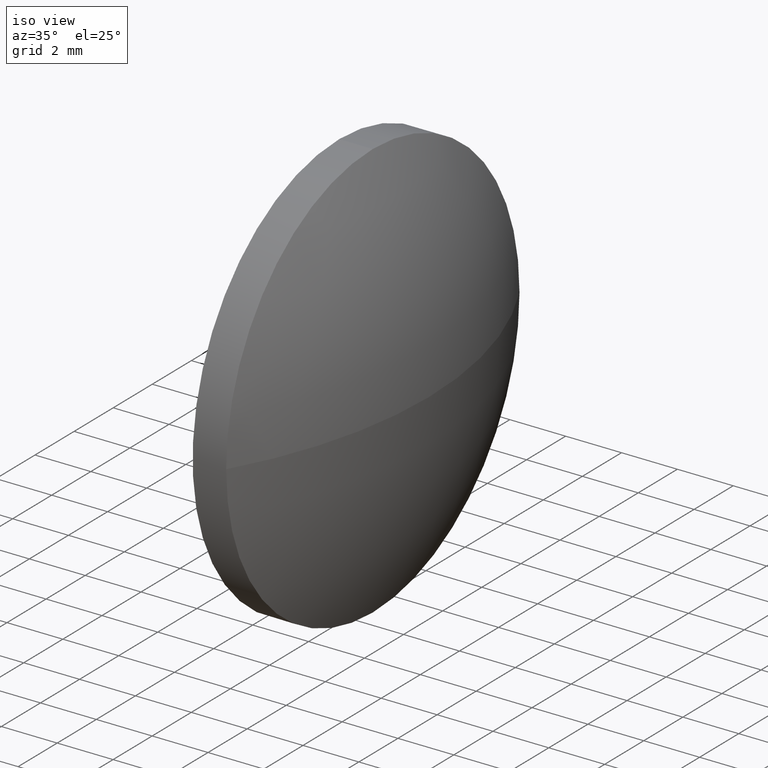
[diagram: clean part render]
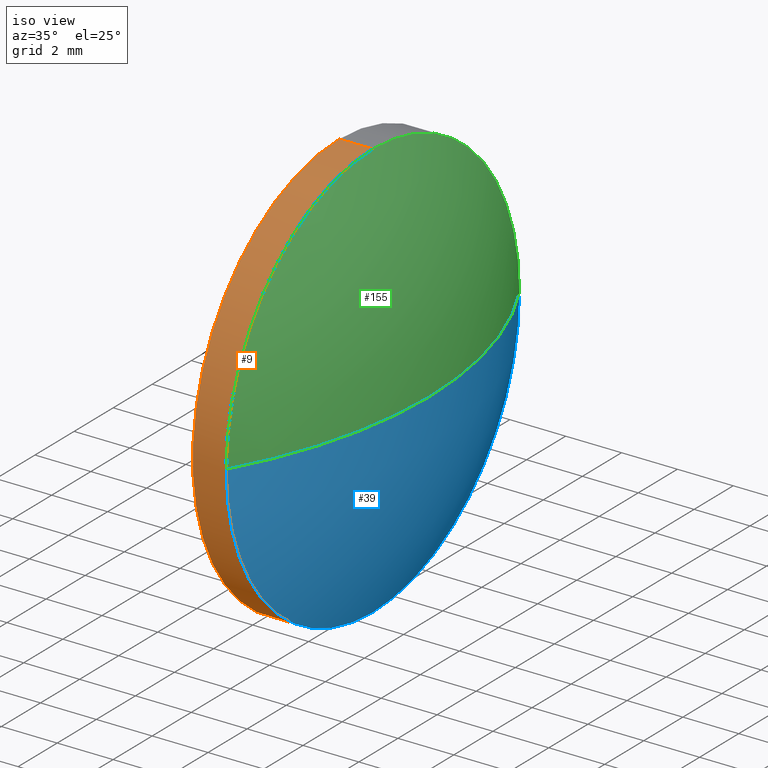
[diagram: same view with three faces highlighted in distinct colors, each labeled with its STEP entity id]
A machine part, iso view with three faces highlighted in distinct colors.
Their STEP definitions:

[orange] entity #9 — the highlighted cylindrical surface (partial cylindrical patch) has radius 7.5 mm, axis along (-1, -0, -0).
#9 = ADVANCED_FACE ( 'NONE', ( #22 ), #119, .T. ) ;
#18 = VERTEX_POINT ( 'NONE', #121 ) ;
#19 = LINE ( 'NONE', #143, #169 ) ;
#20 = AXIS2_PLACEMENT_3D ( 'NONE', #186, #134, #32 ) ;
#21 = VECTOR ( 'NONE', #61, 1000.000000000000000 ) ;
#22 = FACE_OUTER_BOUND ( 'NONE', #86, .T. ) ;
#28 = VERTEX_POINT ( 'NONE', #161 ) ;
#29 = CARTESIAN_POINT ( 'NONE',  ( 465.5821324568758000, 58.16787172714012400, 0.0000000000000000000 ) ) ;
#32 = DIRECTION ( 'NONE',  ( 0.0000000000000000000, 0.0000000000000000000, 1.000000000000000000 ) ) ;
#36 = AXIS2_PLACEMENT_3D ( 'NONE', #113, #111, #65 ) ;
#44 = EDGE_CURVE ( 'NONE', #102, #88, #19, .T. ) ;
#46 = LINE ( 'NONE', #116, #21 ) ;
#50 = ORIENTED_EDGE ( 'NONE', *, *, #53, .T. ) ;
#51 = DIRECTION ( 'NONE',  ( -1.000000000000000000, -0.0000000000000000000, -0.0000000000000000000 ) ) ;
#53 = EDGE_CURVE ( 'NONE', #28, #102, #149, .T. ) ;
#61 = DIRECTION ( 'NONE',  ( -1.000000000000000000, -0.0000000000000000000, -0.0000000000000000000 ) ) ;
#65 = DIRECTION ( 'NONE',  ( 0.0000000000000000000, 0.0000000000000000000, 1.000000000000000000 ) ) ;
#66 = EDGE_CURVE ( 'NONE', #18, #28, #179, .T. ) ;
#69 = DIRECTION ( 'NONE',  ( 0.0000000000000000000, 0.0000000000000000000, 1.000000000000000000 ) ) ;
#80 = EDGE_CURVE ( 'NONE', #166, #88, #150, .T. ) ;
#86 = EDGE_LOOP ( 'NONE', ( #182, #160, #50, #156, #101 ) ) ;
#88 = VERTEX_POINT ( 'NONE', #132 ) ;
#98 = AXIS2_PLACEMENT_3D ( 'NONE', #135, #162, #142 ) ;
#101 = ORIENTED_EDGE ( 'NONE', *, *, #80, .F. ) ;
#102 = VERTEX_POINT ( 'NONE', #157 ) ;
#111 = DIRECTION ( 'NONE',  ( -1.000000000000000000, -0.0000000000000000000, -0.0000000000000000000 ) ) ;
#112 = EDGE_CURVE ( 'NONE', #18, #166, #46, .T. ) ;
#113 = CARTESIAN_POINT ( 'NONE',  ( 466.7821324568757900, 58.16787172714012400, 0.0000000000000000000 ) ) ;
#116 = CARTESIAN_POINT ( 'NONE',  ( 462.7413203261423300, 58.16787172714012400, -7.500000000000007100 ) ) ;
#119 = CYLINDRICAL_SURFACE ( 'NONE', #98, 7.500000000000007100 ) ;
#121 = CARTESIAN_POINT ( 'NONE',  ( 466.7821324568757900, 58.16787172714012400, -7.500000000000007100 ) ) ;
#131 = CARTESIAN_POINT ( 'NONE',  ( 465.5821324568758000, 58.16787172714012400, -7.500000000000007100 ) ) ;
#132 = CARTESIAN_POINT ( 'NONE',  ( 465.5821324568758000, 58.16787172714012400, 7.500000000000007100 ) ) ;
#134 = DIRECTION ( 'NONE',  ( -1.000000000000000000, -0.0000000000000000000, -0.0000000000000000000 ) ) ;
#135 = CARTESIAN_POINT ( 'NONE',  ( 462.7413203261423300, 58.16787172714012400, 0.0000000000000000000 ) ) ;
#140 = AXIS2_PLACEMENT_3D ( 'NONE', #29, #51, #69 ) ;
#142 = DIRECTION ( 'NONE',  ( 0.0000000000000000000, 0.0000000000000000000, 1.000000000000000000 ) ) ;
#143 = CARTESIAN_POINT ( 'NONE',  ( 462.7413203261423300, 58.16787172714012400, 7.500000000000007100 ) ) ;
#149 = CIRCLE ( 'NONE', #36, 7.500000000000007100 ) ;
#150 = CIRCLE ( 'NONE', #140, 7.500000000000007100 ) ;
#156 = ORIENTED_EDGE ( 'NONE', *, *, #44, .T. ) ;
#157 = CARTESIAN_POINT ( 'NONE',  ( 466.7821324568757900, 58.16787172714012400, 7.500000000000007100 ) ) ;
#160 = ORIENTED_EDGE ( 'NONE', *, *, #66, .T. ) ;
#161 = CARTESIAN_POINT ( 'NONE',  ( 466.7821324568757900, 50.66787172714013100, 0.0000000000000000000 ) ) ;
#162 = DIRECTION ( 'NONE',  ( -1.000000000000000000, -0.0000000000000000000, -0.0000000000000000000 ) ) ;
#163 = DIRECTION ( 'NONE',  ( -1.000000000000000000, -0.0000000000000000000, -0.0000000000000000000 ) ) ;
#166 = VERTEX_POINT ( 'NONE', #131 ) ;
#169 = VECTOR ( 'NONE', #163, 1000.000000000000000 ) ;
#179 = CIRCLE ( 'NONE', #20, 7.500000000000007100 ) ;
#182 = ORIENTED_EDGE ( 'NONE', *, *, #112, .F. ) ;
#186 = CARTESIAN_POINT ( 'NONE',  ( 466.7821324568757900, 58.16787172714012400, 0.0000000000000000000 ) ) ;

[blue] entity #39 — the highlighted spherical surface has radius 15.0625 mm.
#4 = ORIENTED_EDGE ( 'NONE', *, *, #164, .F. ) ;
#11 = DIRECTION ( 'NONE',  ( 0.0000000000000000000, 0.0000000000000000000, 1.000000000000000000 ) ) ;
#18 = VERTEX_POINT ( 'NONE', #121 ) ;
#20 = AXIS2_PLACEMENT_3D ( 'NONE', #186, #134, #32 ) ;
#25 = CARTESIAN_POINT ( 'NONE',  ( 453.7196324568757900, 58.16787172714014500, 0.0000000000000000000 ) ) ;
#27 = CARTESIAN_POINT ( 'NONE',  ( 468.7821324568757900, 58.16787172714014500, 0.0000000000000000000 ) ) ;
#28 = VERTEX_POINT ( 'NONE', #161 ) ;
#32 = DIRECTION ( 'NONE',  ( 0.0000000000000000000, 0.0000000000000000000, 1.000000000000000000 ) ) ;
#33 = VERTEX_POINT ( 'NONE', #79 ) ;
#35 = SPHERICAL_SURFACE ( 'NONE', #178, 15.06249999999997500 ) ;
#38 = EDGE_CURVE ( 'NONE', #62, #28, #175, .T. ) ;
#39 = ADVANCED_FACE ( 'NONE', ( #137 ), #35, .T. ) ;
#40 = DIRECTION ( 'NONE',  ( -1.000000000000000000, -0.0000000000000000000, -0.0000000000000000000 ) ) ;
#41 = EDGE_LOOP ( 'NONE', ( #4, #54, #114, #55 ) ) ;
#45 = DIRECTION ( 'NONE',  ( 0.0000000000000000000, -1.000000000000000000, -1.224646799147353500E-016 ) ) ;
#48 = DIRECTION ( 'NONE',  ( 0.0000000000000000000, -1.000000000000000000, 0.0000000000000000000 ) ) ;
#52 = AXIS2_PLACEMENT_3D ( 'NONE', #176, #144, #97 ) ;
#54 = ORIENTED_EDGE ( 'NONE', *, *, #38, .T. ) ;
#55 = ORIENTED_EDGE ( 'NONE', *, *, #87, .F. ) ;
#62 = VERTEX_POINT ( 'NONE', #27 ) ;
#66 = EDGE_CURVE ( 'NONE', #18, #28, #179, .T. ) ;
#79 = CARTESIAN_POINT ( 'NONE',  ( 466.7821324568757900, 65.66787172714012400, 9.184850993605132200E-016 ) ) ;
#82 = CARTESIAN_POINT ( 'NONE',  ( 453.7196324568757900, 58.16787172714014500, 0.0000000000000000000 ) ) ;
#87 = EDGE_CURVE ( 'NONE', #33, #18, #165, .T. ) ;
#96 = DIRECTION ( 'NONE',  ( 0.0000000000000000000, 0.0000000000000000000, 1.000000000000000000 ) ) ;
#97 = DIRECTION ( 'NONE',  ( -1.000000000000000000, 0.0000000000000000000, 0.0000000000000000000 ) ) ;
#114 = ORIENTED_EDGE ( 'NONE', *, *, #66, .F. ) ;
#121 = CARTESIAN_POINT ( 'NONE',  ( 466.7821324568757900, 58.16787172714012400, -7.500000000000007100 ) ) ;
#134 = DIRECTION ( 'NONE',  ( -1.000000000000000000, -0.0000000000000000000, -0.0000000000000000000 ) ) ;
#137 = FACE_OUTER_BOUND ( 'NONE', #41, .T. ) ;
#144 = DIRECTION ( 'NONE',  ( 0.0000000000000000000, 0.0000000000000000000, -1.000000000000000000 ) ) ;
#145 = AXIS2_PLACEMENT_3D ( 'NONE', #171, #40, #11 ) ;
#146 = CIRCLE ( 'NONE', #148, 15.06249999999997200 ) ;
#148 = AXIS2_PLACEMENT_3D ( 'NONE', #25, #154, #45 ) ;
#154 = DIRECTION ( 'NONE',  ( 0.0000000000000000000, -1.224646799147353200E-016, 1.000000000000000000 ) ) ;
#161 = CARTESIAN_POINT ( 'NONE',  ( 466.7821324568757900, 50.66787172714013100, 0.0000000000000000000 ) ) ;
#164 = EDGE_CURVE ( 'NONE', #62, #33, #146, .T. ) ;
#165 = CIRCLE ( 'NONE', #145, 7.500000000000007100 ) ;
#171 = CARTESIAN_POINT ( 'NONE',  ( 466.7821324568757900, 58.16787172714012400, 0.0000000000000000000 ) ) ;
#175 = CIRCLE ( 'NONE', #52, 15.06249999999997900 ) ;
#176 = CARTESIAN_POINT ( 'NONE',  ( 453.7196324568757900, 58.16787172714014500, 0.0000000000000000000 ) ) ;
#178 = AXIS2_PLACEMENT_3D ( 'NONE', #82, #96, #48 ) ;
#179 = CIRCLE ( 'NONE', #20, 7.500000000000007100 ) ;
#186 = CARTESIAN_POINT ( 'NONE',  ( 466.7821324568757900, 58.16787172714012400, 0.0000000000000000000 ) ) ;

[green] entity #155 — the highlighted spherical surface has radius 15.0625 mm.
#12 = CIRCLE ( 'NONE', #170, 7.500000000000007100 ) ;
#15 = DIRECTION ( 'NONE',  ( 0.0000000000000000000, 0.0000000000000000000, 1.000000000000000000 ) ) ;
#17 = SPHERICAL_SURFACE ( 'NONE', #105, 15.06249999999997500 ) ;
#25 = CARTESIAN_POINT ( 'NONE',  ( 453.7196324568757900, 58.16787172714014500, 0.0000000000000000000 ) ) ;
#27 = CARTESIAN_POINT ( 'NONE',  ( 468.7821324568757900, 58.16787172714014500, 0.0000000000000000000 ) ) ;
#28 = VERTEX_POINT ( 'NONE', #161 ) ;
#33 = VERTEX_POINT ( 'NONE', #79 ) ;
#36 = AXIS2_PLACEMENT_3D ( 'NONE', #113, #111, #65 ) ;
#37 = CARTESIAN_POINT ( 'NONE',  ( 453.7196324568757900, 58.16787172714014500, 0.0000000000000000000 ) ) ;
#38 = EDGE_CURVE ( 'NONE', #62, #28, #175, .T. ) ;
#45 = DIRECTION ( 'NONE',  ( 0.0000000000000000000, -1.000000000000000000, -1.224646799147353500E-016 ) ) ;
#52 = AXIS2_PLACEMENT_3D ( 'NONE', #176, #144, #97 ) ;
#53 = EDGE_CURVE ( 'NONE', #28, #102, #149, .T. ) ;
#62 = VERTEX_POINT ( 'NONE', #27 ) ;
#65 = DIRECTION ( 'NONE',  ( 0.0000000000000000000, 0.0000000000000000000, 1.000000000000000000 ) ) ;
#67 = ORIENTED_EDGE ( 'NONE', *, *, #53, .F. ) ;
#71 = EDGE_LOOP ( 'NONE', ( #128, #139, #125, #67 ) ) ;
#77 = EDGE_CURVE ( 'NONE', #102, #33, #12, .T. ) ;
#79 = CARTESIAN_POINT ( 'NONE',  ( 466.7821324568757900, 65.66787172714012400, 9.184850993605132200E-016 ) ) ;
#84 = CARTESIAN_POINT ( 'NONE',  ( 466.7821324568757900, 58.16787172714012400, 0.0000000000000000000 ) ) ;
#97 = DIRECTION ( 'NONE',  ( -1.000000000000000000, 0.0000000000000000000, 0.0000000000000000000 ) ) ;
#102 = VERTEX_POINT ( 'NONE', #157 ) ;
#105 = AXIS2_PLACEMENT_3D ( 'NONE', #37, #184, #117 ) ;
#108 = FACE_OUTER_BOUND ( 'NONE', #71, .T. ) ;
#111 = DIRECTION ( 'NONE',  ( -1.000000000000000000, -0.0000000000000000000, -0.0000000000000000000 ) ) ;
#113 = CARTESIAN_POINT ( 'NONE',  ( 466.7821324568757900, 58.16787172714012400, 0.0000000000000000000 ) ) ;
#117 = DIRECTION ( 'NONE',  ( 0.0000000000000000000, -1.000000000000000000, 0.0000000000000000000 ) ) ;
#125 = ORIENTED_EDGE ( 'NONE', *, *, #77, .F. ) ;
#128 = ORIENTED_EDGE ( 'NONE', *, *, #38, .F. ) ;
#136 = DIRECTION ( 'NONE',  ( -1.000000000000000000, -0.0000000000000000000, -0.0000000000000000000 ) ) ;
#139 = ORIENTED_EDGE ( 'NONE', *, *, #164, .T. ) ;
#144 = DIRECTION ( 'NONE',  ( 0.0000000000000000000, 0.0000000000000000000, -1.000000000000000000 ) ) ;
#146 = CIRCLE ( 'NONE', #148, 15.06249999999997200 ) ;
#148 = AXIS2_PLACEMENT_3D ( 'NONE', #25, #154, #45 ) ;
#149 = CIRCLE ( 'NONE', #36, 7.500000000000007100 ) ;
#154 = DIRECTION ( 'NONE',  ( 0.0000000000000000000, -1.224646799147353200E-016, 1.000000000000000000 ) ) ;
#155 = ADVANCED_FACE ( 'NONE', ( #108 ), #17, .T. ) ;
#157 = CARTESIAN_POINT ( 'NONE',  ( 466.7821324568757900, 58.16787172714012400, 7.500000000000007100 ) ) ;
#161 = CARTESIAN_POINT ( 'NONE',  ( 466.7821324568757900, 50.66787172714013100, 0.0000000000000000000 ) ) ;
#164 = EDGE_CURVE ( 'NONE', #62, #33, #146, .T. ) ;
#170 = AXIS2_PLACEMENT_3D ( 'NONE', #84, #136, #15 ) ;
#175 = CIRCLE ( 'NONE', #52, 15.06249999999997900 ) ;
#176 = CARTESIAN_POINT ( 'NONE',  ( 453.7196324568757900, 58.16787172714014500, 0.0000000000000000000 ) ) ;
#184 = DIRECTION ( 'NONE',  ( 0.0000000000000000000, 0.0000000000000000000, 1.000000000000000000 ) ) ;